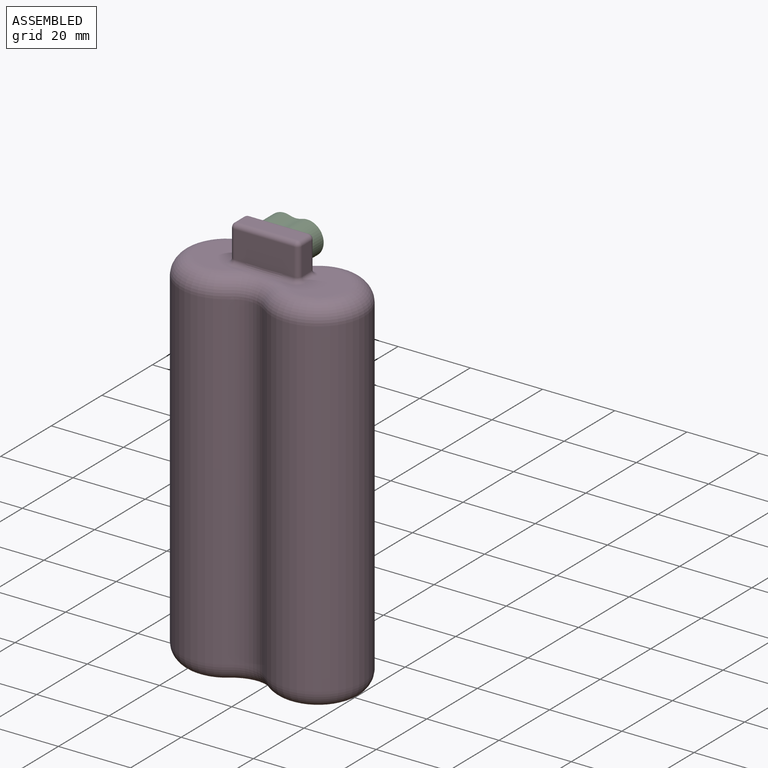
[diagram: assembled view]
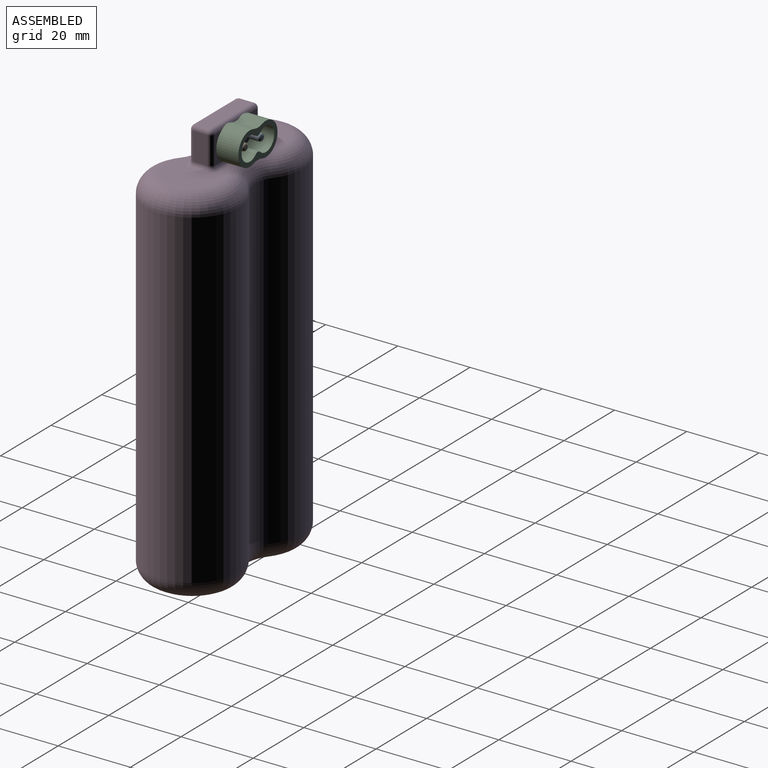
[diagram: assembled view, second angle]
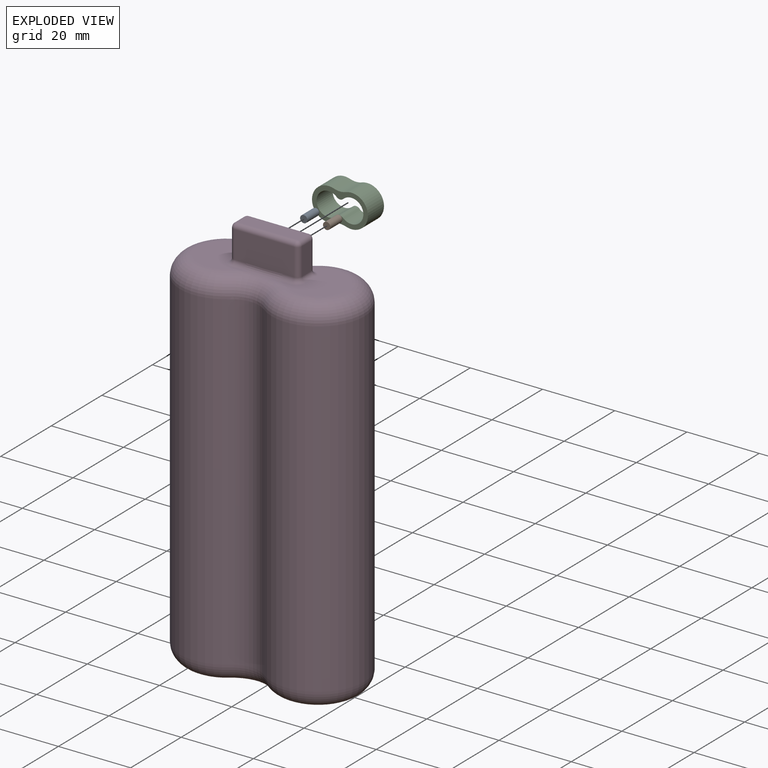
[diagram: exploded view]
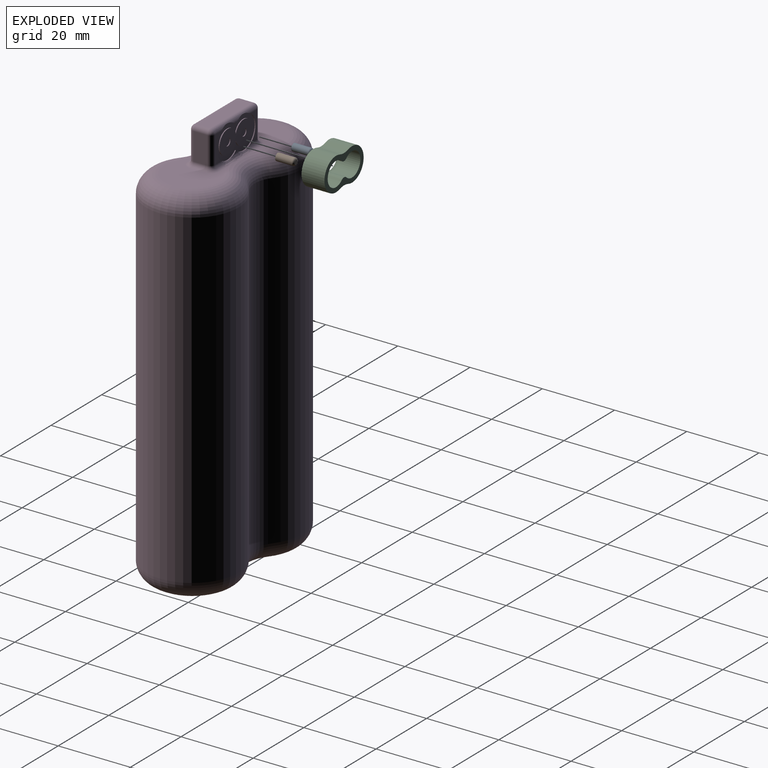
[diagram: exploded view, second angle]
ASSEMBLY  parts=4 mates=3
PART A: 4 faces, bbox 2.2x5.1x2.2 mm
  f0: cylinder r=1.02mm len=4.57mm, axis (0,-1,0), area 29.2mm2, adj f2,f3
  f1: plane 1.02x1.02mm, normal (0,1,0), area 0.8mm2, adj f3
  f2: plane 2.03x2.03mm, normal (0,-1,0), area 3.2mm2, adj f0
  f3: torus R=0.51mm, axis (0,1,0), area 4.2mm2, adj f0,f1
PART B: 4 faces, bbox 2.2x5.1x2.2 mm
  f0: cylinder r=1.02mm len=4.57mm, axis (0,-1,0), area 29.2mm2, adj f2,f3
  f1: plane 1.02x1.02mm, normal (0,1,0), area 0.8mm2, adj f3
  f2: plane 2.03x2.03mm, normal (0,-1,0), area 3.2mm2, adj f0
  f3: torus R=0.51mm, axis (0,1,0), area 4.2mm2, adj f0,f1
PART C: 10 faces, bbox 15.5x6.4x9.1 mm
  f0: cylinder r=4.57mm len=9.14mm, axis (0,-1,0), area 110.7mm2, adj f4,f5,f6,f7
  f1: cylinder r=3.3mm len=6.6mm, axis (0,-1,0), area 98.1mm2, adj f4,f5,f8,f9
  f2: cylinder r=3.3mm len=6.6mm, axis (0,-1,0), area 98.1mm2, adj f4,f5,f8,f9
  f3: cylinder r=4.57mm len=9.14mm, axis (0,-1,0), area 110.7mm2, adj f4,f5,f6,f7
  f4: plane 15.49x9.14mm, normal (0,1,0), area 50.9mm2, adj f0,f1,f2,f3,f6,f7,f8,f9
  f5: plane 15.49x9.14mm, normal (0,-1,0), area 50.9mm2, adj f0,f1,f2,f3,f6,f7,f8,f9
  f6: cylinder r=5.08mm len=6.35mm, axis (0,1,0), area 21.6mm2, adj f0,f3,f4,f5
  f7: cylinder r=5.08mm len=6.35mm, axis (0,1,0), area 21.6mm2, adj f0,f3,f4,f5
  f8: cylinder r=1.27mm len=6.35mm, axis (0,-1,0), area 12.4mm2, adj f1,f2,f4,f5
  f9: cylinder r=1.27mm len=6.35mm, axis (0,-1,0), area 12.4mm2, adj f1,f2,f4,f5
PART D: 63 faces, bbox 53.2x27.8x111.8 mm
  f0: cylinder r=4.57mm len=3.18mm, axis (0,-1,0), area 0.6mm2, adj f4,f20,f21,f50
  f1: cylinder r=4.57mm len=9.14mm, axis (0,-1,0), area 4.2mm2, adj f2,f3,f17,f21,f49,f50,f54
  f2: plane 1.6x0.62mm, normal (0,1,0), area 0.5mm2, adj f1,f17,f45
  f3: plane 7.62x2.55mm, normal (0,1,0), area 8.5mm2, adj f1,f50,f58,f59
  f4: plane 1.3x0.52mm, normal (0,1,0), area 0.3mm2, adj f0,f20,f50
  f5: plane 15.49x15.3mm, normal (0,0,1), area 144.6mm2, adj f23,f24,f25,f54,f57,f58,f60,f61
  f6: plane 15.49x15.3mm, normal (0,0,1), area 144.6mm2, adj f24,f25,f26,f35,f36,f37,f39,f44
  f7: cylinder r=12.83mm len=91.44mm, axis (0,0,-1), area 5256.9mm2, adj f10,f11,f23,f30
  f8: cylinder r=12.83mm len=91.44mm, axis (0,0,-1), area 5256.9mm2, adj f10,f11,f26,f27
  f9: plane 40.89x15.49mm, normal (0,0,-1), area 459.8mm2, adj f27,f28,f29,f30
  f10: cylinder r=7.62mm len=91.44mm, axis (0,0,1), area 933.9mm2, adj f7,f8,f25,f28
  f11: cylinder r=7.62mm len=91.44mm, axis (0,0,1), area 933.9mm2, adj f7,f8,f24,f29
  f12: plane 16.51x7.72mm, normal (0,-1,0), area 126.4mm2, adj f38,f47,f48,f53,f56,f57
  f13: plane 7.62x3.81mm, normal (1,0,0), area 29mm2, adj f38,f39,f41,f42
  f14: plane 7.62x2.55mm, normal (0,1,0), area 8.5mm2, adj f17,f35,f41,f50
  f15: plane 7.62x3.81mm, normal (-1,0,0), area 29mm2, adj f51,f56,f59,f62
  f16: plane 16.51x3.81mm, normal (0,0,1), area 62.9mm2, adj f42,f47,f50,f51
  f17: cylinder r=4.57mm len=9.14mm, axis (0,-1,0), area 4.2mm2, adj f1,f2,f14,f21,f36,f40,f50
  f18: cylinder r=3.3mm len=6.6mm, axis (0,-1,0), area 4.8mm2, adj f19,f21,f22
  f19: cylinder r=3.3mm len=6.6mm, axis (0,-1,0), area 4.8mm2, adj f18,f21,f22
  f20: cylinder r=4.57mm len=3.18mm, axis (0,-1,0), area 0.6mm2, adj f0,f4,f21,f50
  f21: plane 15.49x9.14mm, normal (0,1,0), area 50.5mm2, adj f0,f1,f17,f18,f19,f20
  f22: plane 12.95x6.6mm, normal (0,1,0), area 61.7mm2, adj f18,f19,f31,f33
  f23: torus R=7.75mm, axis (0,0,1), area 392.7mm2, adj f5,f7,f24,f25
  f24: torus R=12.7mm, axis (0,0,1), area 94.9mm2, adj f5,f6,f11,f23,f26,f53
  f25: torus R=12.7mm, axis (0,0,1), area 96mm2, adj f5,f6,f10,f23,f26,f40,f45,f49
  f26: torus R=7.75mm, axis (0,0,1), area 392.7mm2, adj f6,f8,f24,f25
  f27: torus R=7.75mm, axis (0,0,1), area 392.7mm2, adj f8,f9,f28,f29
  f28: torus R=12.7mm, axis (0,0,1), area 101.2mm2, adj f9,f10,f27,f30
  f29: torus R=12.7mm, axis (0,0,1), area 101.2mm2, adj f9,f11,f27,f30
  f30: torus R=7.75mm, axis (0,0,1), area 392.7mm2, adj f7,f9,f28,f29
  f31: cylinder r=1.02mm len=2.03mm, axis (0,-1,0), area 1.6mm2, adj f22,f32
  f32: plane 2.03x2.03mm, normal (0,1,0), area 3.2mm2, adj f31
  f33: cylinder r=1.02mm len=2.03mm, axis (0,-1,0), area 1.6mm2, adj f22,f34
  f34: plane 2.03x2.03mm, normal (0,1,0), area 3.2mm2, adj f33
  f35: cylinder r=1.27mm len=2.55mm, axis (-1,0,0), area 5.1mm2, adj f6,f14,f36,f37
  f36: bspline ~1.47x1.43mm, area 0.9mm2, adj f6,f17,f35,f40
  f37: torus R=2.54mm, axis (0,0,1), area 5.4mm2, adj f6,f35,f39,f41
  f38: cylinder r=1.27mm len=7.62mm, axis (0,0,1), area 15.2mm2, adj f12,f13,f43,f44
  f39: cylinder r=1.27mm len=3.81mm, axis (0,1,0), area 7.6mm2, adj f6,f13,f37,f44
  f40: bspline ~5.24x1.47mm, area 5.9mm2, adj f17,f25,f36,f45
  f41: cylinder r=1.27mm len=7.62mm, axis (0,0,-1), area 15.2mm2, adj f13,f14,f37,f46
  f42: cylinder r=1.27mm len=3.81mm, axis (0,-1,0), area 7.6mm2, adj f13,f16,f43,f46
  f43: sphere r=1.27mm, area 2.5mm2, adj f38,f42,f47
  f44: torus R=2.54mm, axis (0,0,1), area 5.4mm2, adj f6,f38,f39,f48
  f45: bspline ~5.74x1.31mm, area 2.9mm2, adj f2,f25,f40,f49
  f46: sphere r=1.27mm, area 2.5mm2, adj f41,f42,f50
  f47: cylinder r=1.27mm len=16.51mm, axis (-1,0,0), area 32.9mm2, adj f12,f16,f43,f52
  f48: cylinder r=1.27mm len=3.04mm, axis (1,0,0), area 6.1mm2, adj f6,f12,f44,f53
  f49: bspline ~4.48x1.25mm, area 5.9mm2, adj f1,f25,f45,f54
  f50: cylinder r=1.27mm len=16.51mm, axis (1,0,0), area 28.8mm2, adj f0,f1,f3,f4,f14,f16,f17,f20
  f51: cylinder r=1.27mm len=3.81mm, axis (0,1,0), area 7.6mm2, adj f15,f16,f52,f55
  f52: sphere r=1.27mm, area 2.5mm2, adj f47,f51,f56
  f53: bspline ~13.6x1.43mm, area 19.3mm2, adj f12,f24,f48,f57
  f54: bspline ~1.47x1.43mm, area 0.9mm2, adj f1,f5,f49,f58
  f55: sphere r=1.27mm, area 2.5mm2, adj f50,f51,f59
  f56: cylinder r=1.27mm len=7.62mm, axis (0,0,-1), area 15.2mm2, adj f12,f15,f52,f60
  f57: cylinder r=1.27mm len=3.04mm, axis (1,0,0), area 6.1mm2, adj f5,f12,f53,f60
  f58: cylinder r=1.27mm len=2.55mm, axis (-1,0,0), area 5.1mm2, adj f3,f5,f54,f61
  f59: cylinder r=1.27mm len=7.62mm, axis (0,0,1), area 15.2mm2, adj f3,f15,f55,f61
  f60: torus R=2.54mm, axis (0,0,1), area 5.4mm2, adj f5,f56,f57,f62
  f61: torus R=2.54mm, axis (0,0,1), area 5.4mm2, adj f5,f58,f59,f62
  f62: cylinder r=1.27mm len=3.81mm, axis (0,-1,0), area 7.6mm2, adj f5,f15,f60,f61
PLACE A t=(0,16.02,-50.8)mm
PLACE B t=(0,16.02,-50.8)mm
PLACE C t=(0,15.77,-50.8)mm
PLACE D t=(0,16.02,-50.8)mm
MATE fastened D.f31 <-> B.f3  axis (0,1,0) through (3.17,19.2,55.88)mm
MATE fastened A.f3 <-> D.f33  axis (0,-1,0) through (-3.18,19.2,55.88)mm
MATE fastened D.f31 <-> C.f0  axis (0,1,0) through (3.17,18.95,55.88)mm
